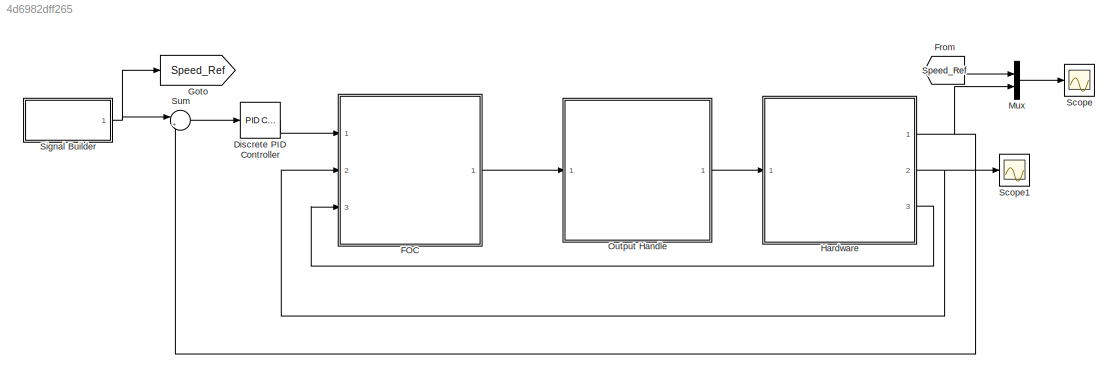
MODEL slx_4d6982dff265
KIND model
CONFIG AbsTol = auto
CONFIG EnableMultiTasking = off
CONFIG FixedStep = Ts
CONFIG MaxStep = auto
CONFIG MinStep = auto
CONFIG RelTol = 1e-3
CONFIG SampleTimeConstraint = Unconstrained
CONFIG SolverName = FixedStepAuto
CONFIG StartTime = 0.0
CONFIG StopTime = 10
BLOCK [Reference] Discrete PID Controller  REF=slpidlib/PID Controller
  Ports = [1, 1]
  SourceBlock = slpidlib/PID Controller
  SourceProductBaseCode = SL
  SourceType = PID 1dof
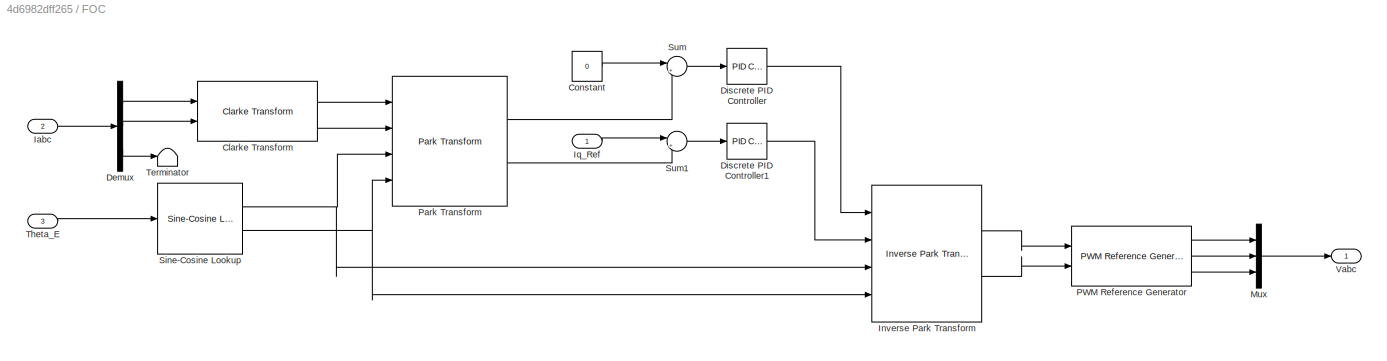
BLOCK [SubSystem] FOC
  Ports = [3, 1]
  RequestExecContextInheritance = off
BLOCK [Reference] FOC/Clarke Transform  REF=mcbcontrolslib/Clarke Transform
  Ports = [2, 2]
  SourceBlock = mcbcontrolslib/Clarke Transform
  SourceProductBaseCode = MT
  SourceType = Clarke Transform
BLOCK [Constant] FOC/Constant
  Value = 0
BLOCK [Demux] FOC/Demux
  Outputs = 3
  Ports = [1, 3]
BLOCK [Reference] FOC/Discrete PID Controller  REF=slpidlib/PID Controller
  Ports = [1, 1]
  SourceBlock = slpidlib/PID Controller
  SourceProductBaseCode = SL
  SourceType = PID 1dof
BLOCK [Reference] FOC/Discrete PID Controller1  REF=slpidlib/PID Controller
  Ports = [1, 1]
  SourceBlock = slpidlib/PID Controller
  SourceProductBaseCode = SL
  SourceType = PID 1dof
BLOCK [Inport] FOC/Iabc
  Port = 2
BLOCK [Reference] FOC/Inverse Park Transform  REF=mcbcontrolslib/Inverse Park Transform
  Ports = [4, 2]
  SourceBlock = mcbcontrolslib/Inverse Park Transform
  SourceProductBaseCode = MT
  SourceType = Inverse Park Transform
BLOCK [Inport] FOC/Iq_Ref
BLOCK [Mux] FOC/Mux
  DisplayOption = bar
  Inputs = 3
  Ports = [3, 1]
BLOCK [Reference] FOC/PWM Reference Generator  REF=mcbcontrolslib/PWM Reference Generator
  Ports = [2, 3]
  SourceBlock = mcbcontrolslib/PWM Reference Generator
  SourceProductBaseCode = MT
  SourceType = PWM Modulation
BLOCK [Reference] FOC/Park Transform  REF=mcbcontrolslib/Park Transform
  Ports = [4, 2]
  SourceBlock = mcbcontrolslib/Park Transform
  SourceProductBaseCode = MT
  SourceType = Park Transform
BLOCK [Reference] FOC/Sine-Cosine Lookup  REF=mcbcontrolslib/Sine-Cosine Lookup
  Ports = [1, 2]
  SourceBlock = mcbcontrolslib/Sine-Cosine Lookup
  SourceProductBaseCode = MT
  SourceType = Sine-Cosine Lookup
BLOCK [Sum] FOC/Sum
  Inputs = |+-
  Ports = [2, 1]
BLOCK [Sum] FOC/Sum1
  Inputs = |+-
  Ports = [2, 1]
BLOCK [Terminator] FOC/Terminator
BLOCK [Inport] FOC/Theta_E
  Port = 3
BLOCK [Outport] FOC/Vabc
BLOCK [From] From
  GotoTag = Speed_Ref
BLOCK [Goto] Goto
  GotoTag = Speed_Ref
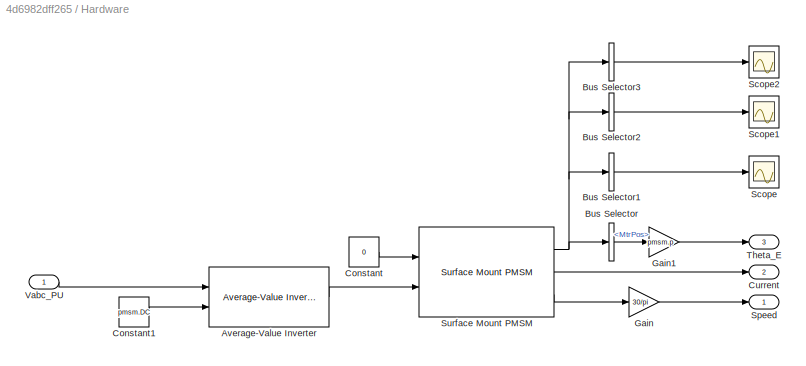
BLOCK [SubSystem] Hardware
  Ports = [1, 3]
  RequestExecContextInheritance = off
BLOCK [Reference] Hardware/Average-Value Inverter  REF=mcbplantlib/Average-Value Inverter
  Ports = [2, 1]
  SourceBlock = mcbplantlib/Average-Value Inverter
  SourceProductBaseCode = MT
  SourceType = Average Value Inverter
BLOCK [BusSelector] Hardware/Bus Selector
  OutputSignals = MtrPos
  Ports = [1, 1]
BLOCK [BusSelector] Hardware/Bus Selector1
  OutputAsBus = on
  OutputSignals = IdSync,IqSync
  Ports = [1, 1]
BLOCK [BusSelector] Hardware/Bus Selector2
  OutputAsBus = on
  OutputSignals = VdSync,VqSync
  Ports = [1, 1]
BLOCK [BusSelector] Hardware/Bus Selector3
  OutputAsBus = on
  OutputSignals = MtrTrq
  Ports = [1, 1]
BLOCK [Constant] Hardware/Constant
  Value = 0
BLOCK [Constant] Hardware/Constant1
  Value = pmsm.DC
BLOCK [Outport] Hardware/Current
  Port = 2
BLOCK [Gain] Hardware/Gain
  Gain = 30/pi
BLOCK [Gain] Hardware/Gain1
  Gain = pmsm.p
BLOCK [Scope] Hardware/Scope
  Floating = off
  NumInputPorts = 1
  Ports = [1]
  ScopeSpecificationString = Simulink.scopes.TimeScopeBlockCfg('CurrentConfiguration', extmgr.ConfigurationSet(extmgr.Configuration('Core','General UI',true),extmgr.Configuration('Core','Source UI',true),extmgr.Configuration('Sources','WiredSimulink',true,'DataLoggingVariableName','ScopeData2'),extmgr.Configuration('Visuals','Time Domain',true,'SerializedDisplays',{struct('MinYLimReal','-4.01258','MaxYLimReal','4.00268','YLab...<+1463ch>
BLOCK [Scope] Hardware/Scope1
  Floating = off
  NumInputPorts = 1
  Ports = [1]
  ScopeSpecificationString = Simulink.scopes.TimeScopeBlockCfg('CurrentConfiguration', extmgr.ConfigurationSet(extmgr.Configuration('Core','General UI',true),extmgr.Configuration('Core','Source UI',true),extmgr.Configuration('Sources','WiredSimulink',true,'DataLoggingVariableName','ScopeData3'),extmgr.Configuration('Visuals','Time Domain',true,'SerializedDisplays',{struct('MinYLimReal','-1.10197','MaxYLimReal','4.44678','YLab...<+1477ch>
BLOCK [Scope] Hardware/Scope2
  Floating = off
  NumInputPorts = 1
  Ports = [1]
  ScopeSpecificationString = Simulink.scopes.TimeScopeBlockCfg('CurrentConfiguration', extmgr.ConfigurationSet(extmgr.Configuration('Core','General UI',true),extmgr.Configuration('Core','Source UI',true),extmgr.Configuration('Sources','WiredSimulink',true,'DataLoggingVariableName','ScopeData4'),extmgr.Configuration('Visuals','Time Domain',true,'SerializedDisplays',{struct('MinYLimReal','-0.02086','MaxYLimReal','0.02639','YLab...<+1474ch>
BLOCK [Outport] Hardware/Speed
BLOCK [Reference] Hardware/Surface Mount PMSM  REF=autolibpmsmexterior/Surface Mount PMSM
  Ports = [2, 3]
  SourceBlock = autolibpmsmexterior/Surface Mount PMSM
  SourceProductBaseCode = PW,DR,MT,VE
  SourceType = Surface Mount PMSM
BLOCK [Outport] Hardware/Theta_E
  Port = 3
BLOCK [Inport] Hardware/Vabc_PU
BLOCK [Mux] Mux
  DisplayOption = bar
  Inputs = 2
  Ports = [2, 1]
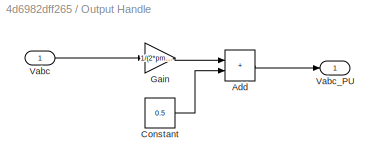
BLOCK [SubSystem] Output Handle
  Ports = [1, 1]
  RequestExecContextInheritance = off
BLOCK [Sum] Output Handle/Add
  IconShape = rectangular
  Ports = [2, 1]
BLOCK [Constant] Output Handle/Constant
  Value = 0.5
BLOCK [Gain] Output Handle/Gain
  Gain = 1/(2*pmsm.DC/sqrt(3))
BLOCK [Inport] Output Handle/Vabc
BLOCK [Outport] Output Handle/Vabc_PU
BLOCK [Scope] Scope
  Floating = off
  NumInputPorts = 1
  Ports = [1]
  ScopeSpecificationString = Simulink.scopes.TimeScopeBlockCfg('CurrentConfiguration', extmgr.ConfigurationSet(extmgr.Configuration('Core','General UI',true),extmgr.Configuration('Core','Source UI',true),extmgr.Configuration('Sources','WiredSimulink',true,'DataLoggingVariableName','ScopeData1'),extmgr.Configuration('Visuals','Time Domain',true,'SerializedDisplays',{struct('MinYLimReal','-981.44571','MaxYLimReal','8833.01136',...<+1512ch>
BLOCK [Scope] Scope1
  Floating = off
  NumInputPorts = 1
  Ports = [1]
  ScopeSpecificationString = Simulink.scopes.TimeScopeBlockCfg('CurrentConfiguration', extmgr.ConfigurationSet(extmgr.Configuration('Core','General UI',true),extmgr.Configuration('Core','Source UI',true),extmgr.Configuration('Sources','WiredSimulink',true,'DataLoggingVariableName','ScopeData2'),extmgr.Configuration('Visuals','Time Domain',true,'SerializedDisplays',{struct('MinYLimReal','-4.0065','MaxYLimReal','3.99044','YLabe...<+1503ch>
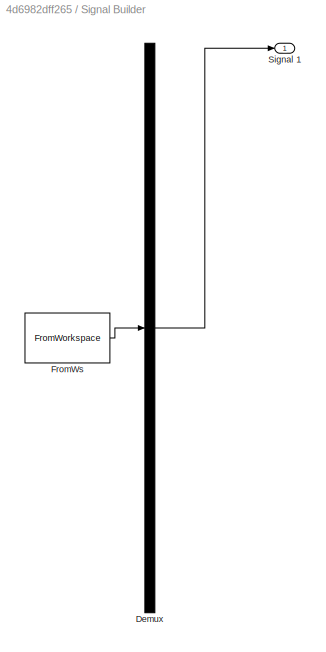
BLOCK [SubSystem] Signal Builder
  ClipboardFcn = sigbuilder_block('clipboard');
  CloseFcn = sigbuilder_block('close');
  ContinueFcn = sigbuilder_block('continue');
  CopyFcn = sigbuilder_block('copy');
  DeleteFcn = sigbuilder_block('delete');
  LoadFcn = sigbuilder_block('load');
  MaskHideContents = on
  ModelCloseFcn = sigbuilder_block('modelClose');
  NameChangeFcn = sigbuilder_block('namechange');
  OpenFcn = sigbuilder_block('open',[437.6 199.2 550.4 400 ]);
  PauseFcn = sigbuilder_block('pause');
  Ports = [0, 1]
  PreSaveFcn = sigbuilder_block('preSave');
  RequestExecContextInheritance = off
  StartFcn = sigbuilder_block('start');
  StopFcn = sigbuilder_block('stop');
  Tag = STV Subsys
BLOCK [Demux] Signal Builder/Demux
  DisplayOption = none
  Outputs = 1
  Ports = [1, 1]
  Tag = STV Demux
BLOCK [FromWorkspace] Signal Builder/FromWs
  Tag = STV FromWs
  VariableName = tuvar
BLOCK [Outport] Signal Builder/Signal 1
  Tag = STV Outport
BLOCK [Sum] Sum
  Inputs = |+-
  Ports = [2, 1]
LINE Discrete PID Controller:1 -> FOC:1
LINE FOC/Clarke Transform:1 -> FOC/Park Transform:1
LINE FOC/Clarke Transform:2 -> FOC/Park Transform:2
LINE FOC/Constant:1 -> FOC/Sum:1
LINE FOC/Demux:1 -> FOC/Clarke Transform:1
LINE FOC/Demux:2 -> FOC/Clarke Transform:2
LINE FOC/Demux:3 -> FOC/Terminator:1
LINE FOC/Discrete PID Controller1:1 -> FOC/Inverse Park Transform:2
LINE FOC/Discrete PID Controller:1 -> FOC/Inverse Park Transform:1
LINE FOC/Iabc:1 -> FOC/Demux:1
LINE FOC/Inverse Park Transform:1 -> FOC/PWM Reference Generator:1
LINE FOC/Inverse Park Transform:2 -> FOC/PWM Reference Generator:2
LINE FOC/Iq_Ref:1 -> FOC/Sum1:1
LINE FOC/Mux:1 -> FOC/Vabc:1
LINE FOC/PWM Reference Generator:1 -> FOC/Mux:1
LINE FOC/PWM Reference Generator:2 -> FOC/Mux:2
LINE FOC/PWM Reference Generator:3 -> FOC/Mux:3
LINE FOC/Park Transform:1 -> FOC/Sum:2
LINE FOC/Park Transform:2 -> FOC/Sum1:2
NET FOC/Sine-Cosine Lookup:1 -> FOC/Inverse Park Transform:3, FOC/Park Transform:3
NET FOC/Sine-Cosine Lookup:2 -> FOC/Inverse Park Transform:4, FOC/Park Transform:4
LINE FOC/Sum1:1 -> FOC/Discrete PID Controller1:1
LINE FOC/Sum:1 -> FOC/Discrete PID Controller:1
LINE FOC/Theta_E:1 -> FOC/Sine-Cosine Lookup:1
LINE FOC:1 -> Output Handle:1
LINE From:1 -> Mux:1
LINE Hardware/Average-Value Inverter:1 -> Hardware/Surface Mount PMSM:2
LINE Hardware/Bus Selector1:1 -> Hardware/Scope:1
LINE Hardware/Bus Selector2:1 -> Hardware/Scope1:1
LINE Hardware/Bus Selector3:1 -> Hardware/Scope2:1
LINE Hardware/Bus Selector:1 -> Hardware/Gain1:1
LINE Hardware/Constant1:1 -> Hardware/Average-Value Inverter:2
LINE Hardware/Constant:1 -> Hardware/Surface Mount PMSM:1
LINE Hardware/Gain1:1 -> Hardware/Theta_E:1
LINE Hardware/Gain:1 -> Hardware/Speed:1
NET Hardware/Surface Mount PMSM:1 -> Hardware/Bus Selector1:1, Hardware/Bus Selector2:1, Hardware/Bus Selector3:1, Hardware/Bus Selector:1
LINE Hardware/Surface Mount PMSM:2 -> Hardware/Current:1
LINE Hardware/Surface Mount PMSM:3 -> Hardware/Gain:1
LINE Hardware/Vabc_PU:1 -> Hardware/Average-Value Inverter:1
NET Hardware:1 -> Mux:2, Sum:2
NET Hardware:2 -> FOC:2, Scope1:1
LINE Hardware:3 -> FOC:3
LINE Mux:1 -> Scope:1
LINE Output Handle/Add:1 -> Output Handle/Vabc_PU:1
LINE Output Handle/Constant:1 -> Output Handle/Add:2
LINE Output Handle/Gain:1 -> Output Handle/Add:1
LINE Output Handle/Vabc:1 -> Output Handle/Gain:1
LINE Output Handle:1 -> Hardware:1
NET Signal Builder:1 -> Goto:1, Sum:1
LINE Sum:1 -> Discrete PID Controller:1
note: NET lines group one-source signal fan-out (src -> all destinations, sorted); 1:1 wires keep LINE
